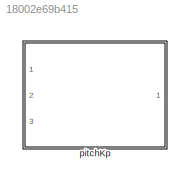
MODEL slx_18002e69b415
KIND library
CONFIG AbsTol = auto
CONFIG EnableMultiTasking = off
CONFIG FixedStep = auto
CONFIG MaxStep = auto
CONFIG MinStep = auto
CONFIG RelTol = 1e-3
CONFIG SampleTimeConstraint = Unconstrained
CONFIG SolverName = VariableStepAuto
CONFIG StartTime = 0.0
CONFIG StopTime = 10.0
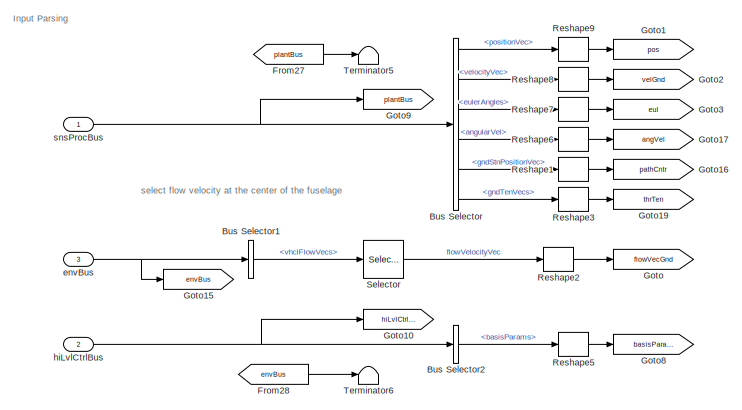
[diagram: pitchKp - part 1/2, middle left region]
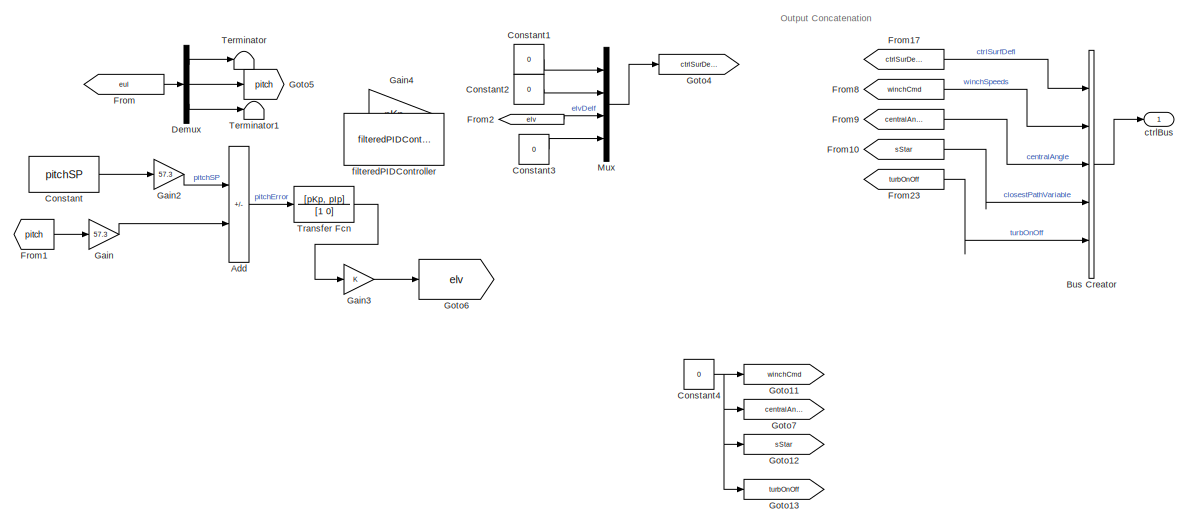
[diagram: pitchKp - part 2/2, right side, full height]
BLOCK [SubSystem] pitchKp
  Ports = [3, 1]
  RequestExecContextInheritance = off
BLOCK [Sum] pitchKp/Add
  IconShape = rectangular
  Inputs = +-
  Ports = [2, 1]
BLOCK [BusCreator] pitchKp/Bus Creator
  DisplayOption = bar
  InheritFromInputs = off
  Inputs = 5
  OutDataTypeStr = Bus: fltCtrlBus
  Ports = [5, 1]
BLOCK [BusSelector] pitchKp/Bus Selector
  OutputSignals = positionVec,velocityVec,eulerAngles,angularVel,gndStnPositionVec,gndTenVecs
  Ports = [1, 6]
BLOCK [BusSelector] pitchKp/Bus Selector1
  OutputSignals = vhclFlowVecs
  Ports = [1, 1]
BLOCK [BusSelector] pitchKp/Bus Selector2
  OutputSignals = basisParams
  Ports = [1, 1]
BLOCK [Constant] pitchKp/Constant
  Value = pitchSP
BLOCK [Constant] pitchKp/Constant1
  Value = 0
BLOCK [Constant] pitchKp/Constant2
  Value = 0
BLOCK [Constant] pitchKp/Constant3
  Value = 0
BLOCK [Constant] pitchKp/Constant4
  Value = 0
BLOCK [Demux] pitchKp/Demux
  Outputs = 3
  Ports = [1, 3]
BLOCK [From] pitchKp/From
  GotoTag = eul
BLOCK [From] pitchKp/From1
  GotoTag = pitch
BLOCK [From] pitchKp/From10
  GotoTag = sStar
BLOCK [From] pitchKp/From17
  GotoTag = ctrlSurDefl
BLOCK [From] pitchKp/From2
  GotoTag = elv
BLOCK [From] pitchKp/From23
  GotoTag = turbOnOff
BLOCK [From] pitchKp/From27
  GotoTag = plantBus
BLOCK [From] pitchKp/From28
  GotoTag = envBus
BLOCK [From] pitchKp/From8
  GotoTag = winchCmd
BLOCK [From] pitchKp/From9
  GotoTag = centralAngle
BLOCK [Gain] pitchKp/Gain
  Gain = 57.3
BLOCK [Gain] pitchKp/Gain2
  Gain = 57.3
BLOCK [Gain] pitchKp/Gain3
BLOCK [Gain] pitchKp/Gain4
  Commented = on
  Gain = pKp
BLOCK [Goto] pitchKp/Goto
  GotoTag = flowVecGnd
BLOCK [Goto] pitchKp/Goto1
  GotoTag = pos
BLOCK [Goto] pitchKp/Goto10
  GotoTag = hiLvlCtrlBus
BLOCK [Goto] pitchKp/Goto11
  GotoTag = winchCmd
BLOCK [Goto] pitchKp/Goto12
  GotoTag = sStar
BLOCK [Goto] pitchKp/Goto13
  GotoTag = turbOnOff
BLOCK [Goto] pitchKp/Goto15
  GotoTag = envBus
BLOCK [Goto] pitchKp/Goto16
  GotoTag = pathCntr
BLOCK [Goto] pitchKp/Goto17
  GotoTag = angVel
BLOCK [Goto] pitchKp/Goto19
  GotoTag = thrTen
BLOCK [Goto] pitchKp/Goto2
  GotoTag = velGnd
BLOCK [Goto] pitchKp/Goto3
  GotoTag = eul
BLOCK [Goto] pitchKp/Goto4
  GotoTag = ctrlSurDefl
BLOCK [Goto] pitchKp/Goto5
  GotoTag = pitch
BLOCK [Goto] pitchKp/Goto6
  GotoTag = elv
BLOCK [Goto] pitchKp/Goto7
  GotoTag = centralAngle
BLOCK [Goto] pitchKp/Goto8
  GotoTag = basisParams
BLOCK [Goto] pitchKp/Goto9
  GotoTag = plantBus
BLOCK [Mux] pitchKp/Mux
  DisplayOption = bar
  Ports = [4, 1]
BLOCK [Reshape] pitchKp/Reshape1
  OutputDimensionality = Column vector (2-D)
  Ports = [1, 1]
BLOCK [Reshape] pitchKp/Reshape2
  OutputDimensionality = Column vector (2-D)
  Ports = [1, 1]
BLOCK [Reshape] pitchKp/Reshape3
  OutputDimensionality = Column vector (2-D)
  Ports = [1, 1]
BLOCK [Reshape] pitchKp/Reshape5
  OutputDimensionality = Column vector (2-D)
  Ports = [1, 1]
BLOCK [Reshape] pitchKp/Reshape6
  OutputDimensionality = Column vector (2-D)
  Ports = [1, 1]
BLOCK [Reshape] pitchKp/Reshape7
  OutputDimensionality = Column vector (2-D)
  Ports = [1, 1]
BLOCK [Reshape] pitchKp/Reshape8
  OutputDimensionality = Column vector (2-D)
  Ports = [1, 1]
BLOCK [Reshape] pitchKp/Reshape9
  OutputDimensionality = Column vector (2-D)
  Ports = [1, 1]
BLOCK [Selector] pitchKp/Selector
  IndexOptions = Select all,Index vector (dialog)
  Indices = [1 3],5
  InputPortWidth = 3
  NumberOfDimensions = 2
  OutputSizes = 1,1
  Ports = [1, 1]
BLOCK [Terminator] pitchKp/Terminator
BLOCK [Terminator] pitchKp/Terminator1
BLOCK [Terminator] pitchKp/Terminator5
BLOCK [Terminator] pitchKp/Terminator6
BLOCK [TransferFcn] pitchKp/Transfer Fcn
  Denominator = [1 0]
  Numerator = [pKp, pIp]
BLOCK [Outport] pitchKp/ctrlBus
  OutDataTypeStr = Bus: fltCtrlBus
  VectorParamsAs1DForOutWhenUnconnected = off
BLOCK [Inport] pitchKp/envBus
  OutDataTypeStr = Bus: envBus
  Port = 3
BLOCK [Reference] pitchKp/filteredPIDController  REF=filteredPIDController_ul/filteredPIDController
  Commented = on
  Ports = [1, 1]
  SourceBlock = filteredPIDController_ul/filteredPIDController
BLOCK [Inport] pitchKp/hiLvlCtrlBus
  OutDataTypeStr = Bus: hiLvlCtrlBus
  Port = 2
BLOCK [Inport] pitchKp/snsProcBus
  OutDataTypeStr = Bus: sensorsProcessingBus
ANNOTATION pitchKp: Input Parsing
ANNOTATION pitchKp: Output Concatenation
ANNOTATION pitchKp: select flow velocity at the center of the fuselage
LINE pitchKp/Add:1 -> pitchKp/Transfer Fcn:1
LINE pitchKp/Bus Creator:1 -> pitchKp/ctrlBus:1
LINE pitchKp/Bus Selector1:1 -> pitchKp/Selector:1
LINE pitchKp/Bus Selector2:1 -> pitchKp/Reshape5:1
LINE pitchKp/Bus Selector:1 -> pitchKp/Reshape9:1
LINE pitchKp/Bus Selector:2 -> pitchKp/Reshape8:1
LINE pitchKp/Bus Selector:3 -> pitchKp/Reshape7:1
LINE pitchKp/Bus Selector:4 -> pitchKp/Reshape6:1
LINE pitchKp/Bus Selector:5 -> pitchKp/Reshape1:1
LINE pitchKp/Bus Selector:6 -> pitchKp/Reshape3:1
LINE pitchKp/Constant1:1 -> pitchKp/Mux:1
LINE pitchKp/Constant2:1 -> pitchKp/Mux:2
LINE pitchKp/Constant3:1 -> pitchKp/Mux:4
NET pitchKp/Constant4:1 -> pitchKp/Goto11:1, pitchKp/Goto12:1, pitchKp/Goto13:1, pitchKp/Goto7:1
LINE pitchKp/Constant:1 -> pitchKp/Gain2:1
LINE pitchKp/Demux:1 -> pitchKp/Terminator:1
LINE pitchKp/Demux:2 -> pitchKp/Goto5:1
LINE pitchKp/Demux:3 -> pitchKp/Terminator1:1
LINE pitchKp/From10:1 -> pitchKp/Bus Creator:4
LINE pitchKp/From17:1 -> pitchKp/Bus Creator:1
LINE pitchKp/From1:1 -> pitchKp/Gain:1
LINE pitchKp/From23:1 -> pitchKp/Bus Creator:5
LINE pitchKp/From27:1 -> pitchKp/Terminator5:1
LINE pitchKp/From28:1 -> pitchKp/Terminator6:1
LINE pitchKp/From2:1 -> pitchKp/Mux:3
LINE pitchKp/From8:1 -> pitchKp/Bus Creator:2
LINE pitchKp/From9:1 -> pitchKp/Bus Creator:3
LINE pitchKp/From:1 -> pitchKp/Demux:1
LINE pitchKp/Gain2:1 -> pitchKp/Add:1
LINE pitchKp/Gain3:1 -> pitchKp/Goto6:1
LINE pitchKp/Gain:1 -> pitchKp/Add:2
LINE pitchKp/Mux:1 -> pitchKp/Goto4:1
LINE pitchKp/Reshape1:1 -> pitchKp/Goto16:1
LINE pitchKp/Reshape2:1 -> pitchKp/Goto:1
LINE pitchKp/Reshape3:1 -> pitchKp/Goto19:1
LINE pitchKp/Reshape5:1 -> pitchKp/Goto8:1
LINE pitchKp/Reshape6:1 -> pitchKp/Goto17:1
LINE pitchKp/Reshape7:1 -> pitchKp/Goto3:1
LINE pitchKp/Reshape8:1 -> pitchKp/Goto2:1
LINE pitchKp/Reshape9:1 -> pitchKp/Goto1:1
LINE pitchKp/Selector:1 -> pitchKp/Reshape2:1
LINE pitchKp/Transfer Fcn:1 -> pitchKp/Gain3:1
NET pitchKp/envBus:1 -> pitchKp/Bus Selector1:1, pitchKp/Goto15:1
NET pitchKp/hiLvlCtrlBus:1 -> pitchKp/Bus Selector2:1, pitchKp/Goto10:1
NET pitchKp/snsProcBus:1 -> pitchKp/Bus Selector:1, pitchKp/Goto9:1
note: NET lines group one-source signal fan-out (src -> all destinations, sorted); 1:1 wires keep LINE
